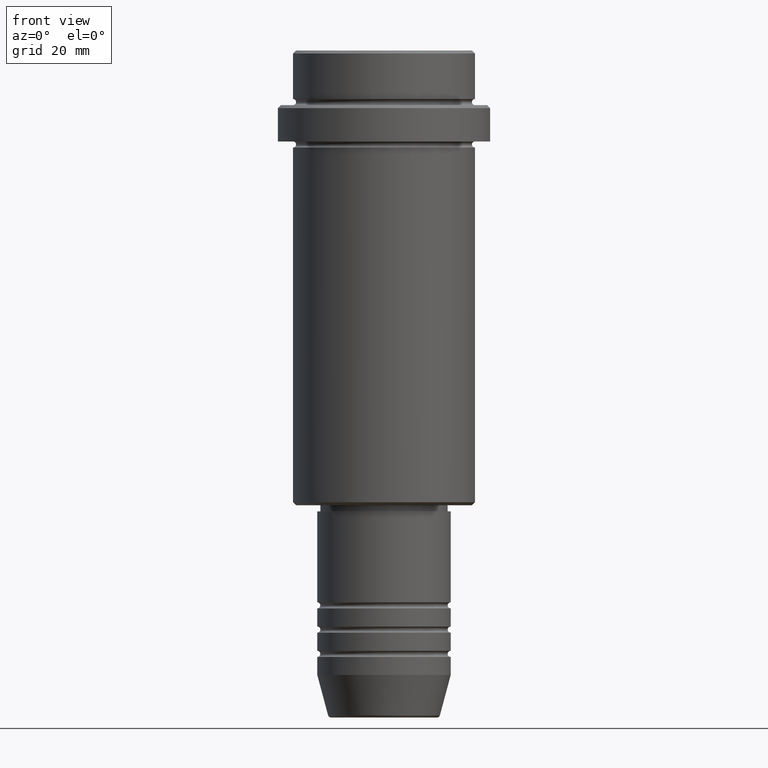
[diagram: clean part render]
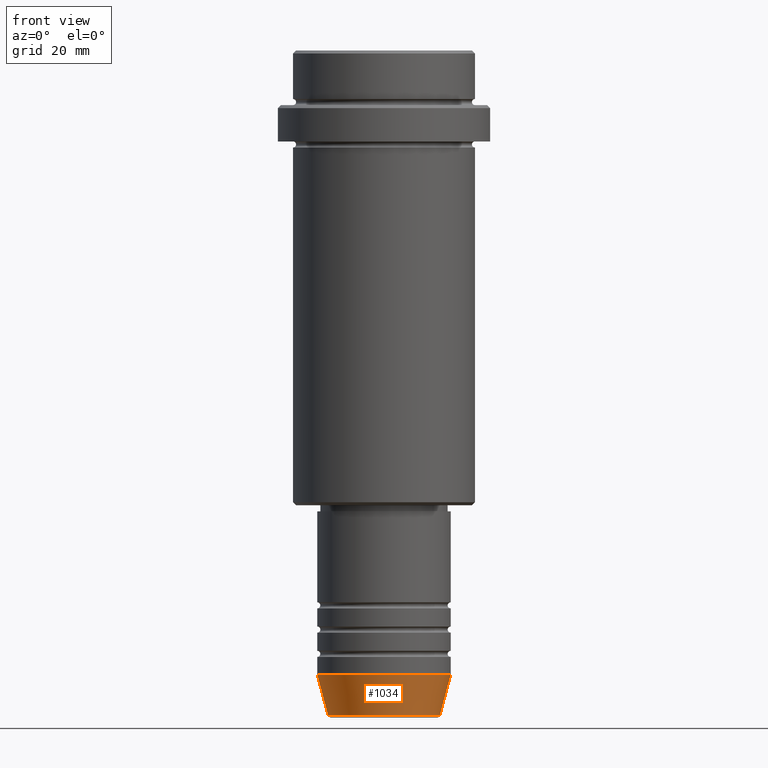
[diagram: same view with one face highlighted and labeled with its STEP entity id]
A machine part, front view. The second image highlights one B-rep face of the part: STEP entity #1034.
In plain terms, the highlighted conical surface has half-angle 15 deg.
Its self-contained STEP definition (entity closure, byte-faithful):
#16 = EDGE_LOOP ( 'NONE', ( #1285, #72, #908, #1394 ) ) ;
#54 = AXIS2_PLACEMENT_3D ( 'NONE', #886, #1393, #867 ) ;
#72 = ORIENTED_EDGE ( 'NONE', *, *, #796, .T. ) ;
#82 = AXIS2_PLACEMENT_3D ( 'NONE', #1036, #1030, #479 ) ;
#131 = VECTOR ( 'NONE', #622, 1000.000000000000000 ) ;
#186 = VERTEX_POINT ( 'NONE', #1144 ) ;
#250 = DIRECTION ( 'NONE',  ( -0.000000000000000000, -0.000000000000000000, 1.000000000000000000 ) ) ;
#253 = FACE_OUTER_BOUND ( 'NONE', #16, .T. ) ;
#278 = CARTESIAN_POINT ( 'NONE',  ( 11.00000000000000000, 0.000000000000000000, -103.0000000000000142 ) ) ;
#363 = CONICAL_SURFACE ( 'NONE', #82, 11.00000000000000000, 0.2617993877991500740 ) ;
#398 = LINE ( 'NONE', #278, #131 ) ;
#427 = EDGE_CURVE ( 'NONE', #1395, #186, #1096, .T. ) ;
#447 = DIRECTION ( 'NONE',  ( -0.2588190451025213501, 3.169619151431772337E-17, 0.9659258262890680902 ) ) ;
#479 = DIRECTION ( 'NONE',  ( 1.000000000000000000, 0.000000000000000000, 0.000000000000000000 ) ) ;
#563 = VERTEX_POINT ( 'NONE', #1033 ) ;
#575 = CIRCLE ( 'NONE', #54, 9.223655072137187716 ) ;
#605 = EDGE_CURVE ( 'NONE', #186, #1257, #850, .T. ) ;
#622 = DIRECTION ( 'NONE',  ( 0.2588190451025213501, 0.000000000000000000, 0.9659258262890680902 ) ) ;
#668 = CARTESIAN_POINT ( 'NONE',  ( 11.00000000000000000, 0.000000000000000000, -103.0000000000000142 ) ) ;
#686 = AXIS2_PLACEMENT_3D ( 'NONE', #1324, #250, #693 ) ;
#693 = DIRECTION ( 'NONE',  ( 1.000000000000000000, 0.000000000000000000, 0.000000000000000000 ) ) ;
#778 = CARTESIAN_POINT ( 'NONE',  ( -11.00000000000000000, 1.347111479062088405E-15, -103.0000000000000142 ) ) ;
#796 = EDGE_CURVE ( 'NONE', #1395, #563, #575, .T. ) ;
#850 = CIRCLE ( 'NONE', #686, 11.00000000000000000 ) ;
#867 = DIRECTION ( 'NONE',  ( 1.000000000000000000, 0.000000000000000000, 0.000000000000000000 ) ) ;
#886 = CARTESIAN_POINT ( 'NONE',  ( 0.000000000000000000, 0.000000000000000000, -109.6294095225512564 ) ) ;
#908 = ORIENTED_EDGE ( 'NONE', *, *, #1138, .T. ) ;
#1010 = CARTESIAN_POINT ( 'NONE',  ( -9.223655072137187716, 1.238341722557647004E-15, -109.6294095225512564 ) ) ;
#1030 = DIRECTION ( 'NONE',  ( -0.000000000000000000, -0.000000000000000000, 1.000000000000000000 ) ) ;
#1033 = CARTESIAN_POINT ( 'NONE',  ( 9.223655072137187716, 0.000000000000000000, -109.6294095225512564 ) ) ;
#1034 = ADVANCED_FACE ( 'NONE', ( #253 ), #363, .T. ) ;
#1036 = CARTESIAN_POINT ( 'NONE',  ( 0.000000000000000000, 0.000000000000000000, -103.0000000000000142 ) ) ;
#1096 = LINE ( 'NONE', #778, #1352 ) ;
#1138 = EDGE_CURVE ( 'NONE', #563, #1257, #398, .T. ) ;
#1144 = CARTESIAN_POINT ( 'NONE',  ( -11.00000000000000000, 1.347111479062088405E-15, -103.0000000000000142 ) ) ;
#1257 = VERTEX_POINT ( 'NONE', #668 ) ;
#1285 = ORIENTED_EDGE ( 'NONE', *, *, #427, .F. ) ;
#1324 = CARTESIAN_POINT ( 'NONE',  ( 0.000000000000000000, 0.000000000000000000, -103.0000000000000142 ) ) ;
#1352 = VECTOR ( 'NONE', #447, 1000.000000000000000 ) ;
#1393 = DIRECTION ( 'NONE',  ( -0.000000000000000000, -0.000000000000000000, 1.000000000000000000 ) ) ;
#1394 = ORIENTED_EDGE ( 'NONE', *, *, #605, .F. ) ;
#1395 = VERTEX_POINT ( 'NONE', #1010 ) ;